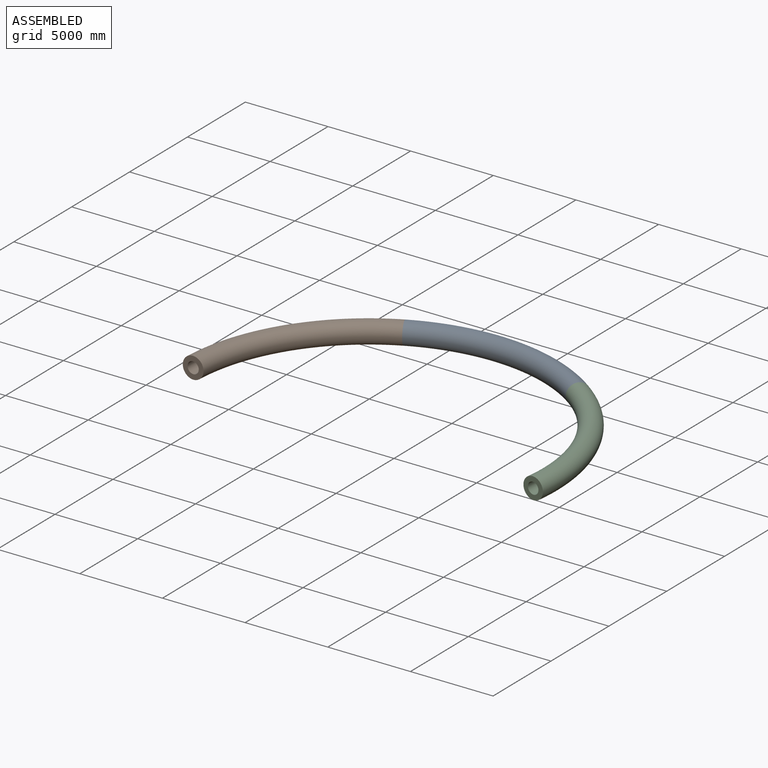
[diagram: assembled view]
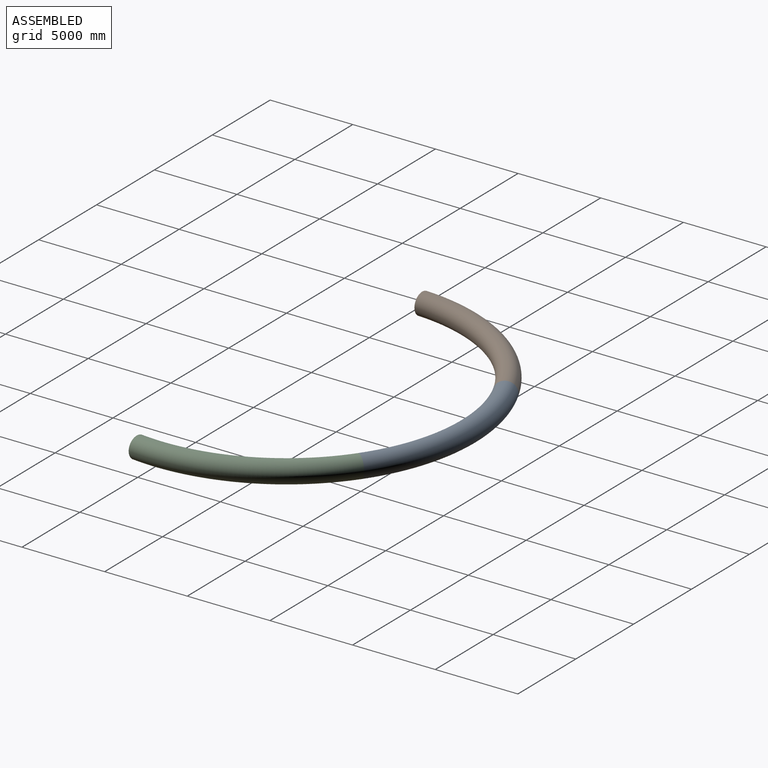
[diagram: assembled view, second angle]
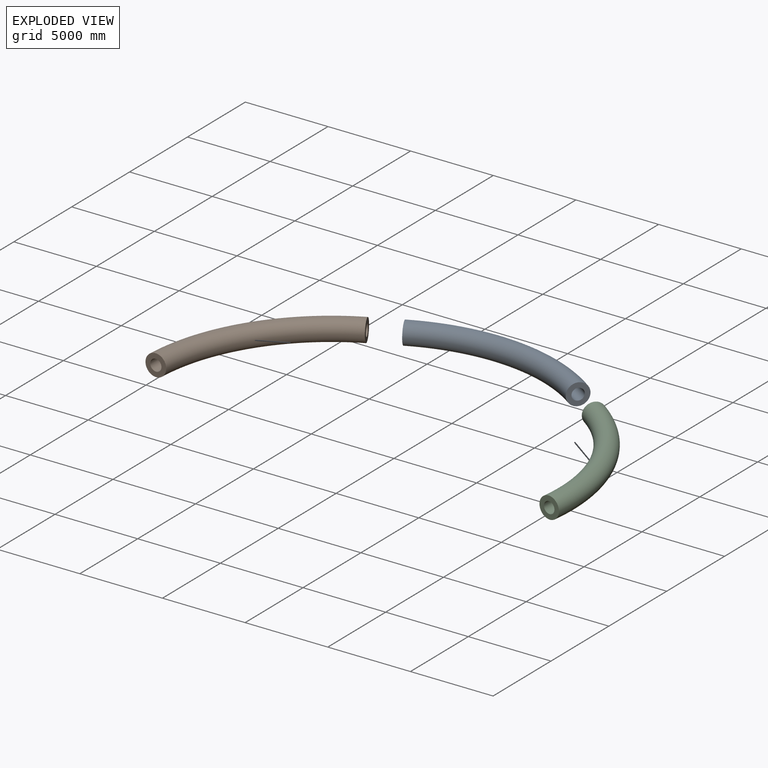
[diagram: exploded view]
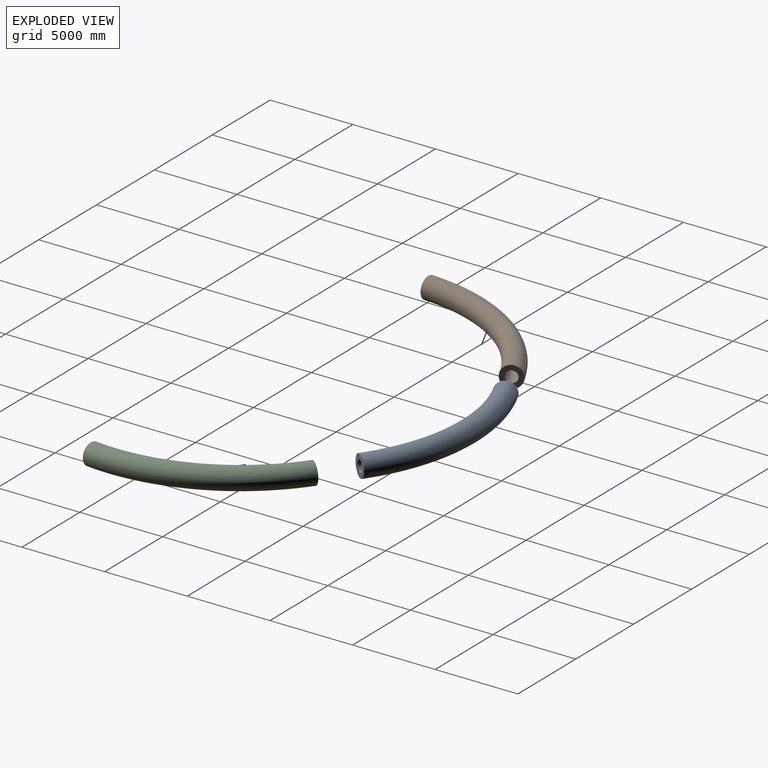
[diagram: exploded view, second angle]
ASSEMBLY  parts=3 mates=2
PART A: 4 faces, bbox 6743.6x11704.5x1300 mm
  f0: torus R=11000mm, axis (0,0,1), area 25949555.3mm2, adj f1,f2
  f1: plane 1300x1292.9mm, normal (-0.1,-0.99,0), area 942477.8mm2, adj f0,f3
  f2: plane 1300x1071.03mm, normal (-0.82,0.57,0), area 942477.8mm2, adj f0,f3
  f3: torus R=11000mm, axis (0,0,1), area 48192031.3mm2, adj f1,f2
PART B: same geometry as A
PART C: same geometry as A
PLACE A rot(axis=(0,0,1),60.3deg) t=(-10504.35,868.52,0)mm
PLACE B rot(axis=(0,0,1),121.8deg) t=(-11485.72,2024.27,0)mm
PLACE C rot(axis=(0,0,-1),1.2deg) t=(-11050.86,-545.75,0)mm
MATE fastened A.f1 <-> C.f2  axis (0.81,-0.58,0) through (-5547.87,9553.76,0)mm
MATE fastened B.f1 <-> A.f2  axis (0.9,0.43,0) through (-16747.9,10527.77,0)mm
